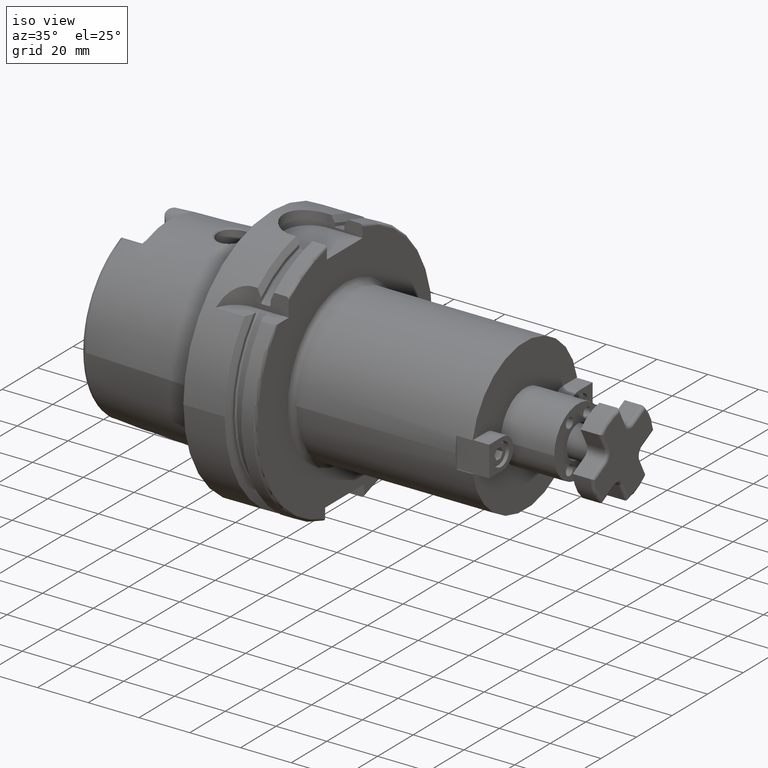
[diagram: clean part render]
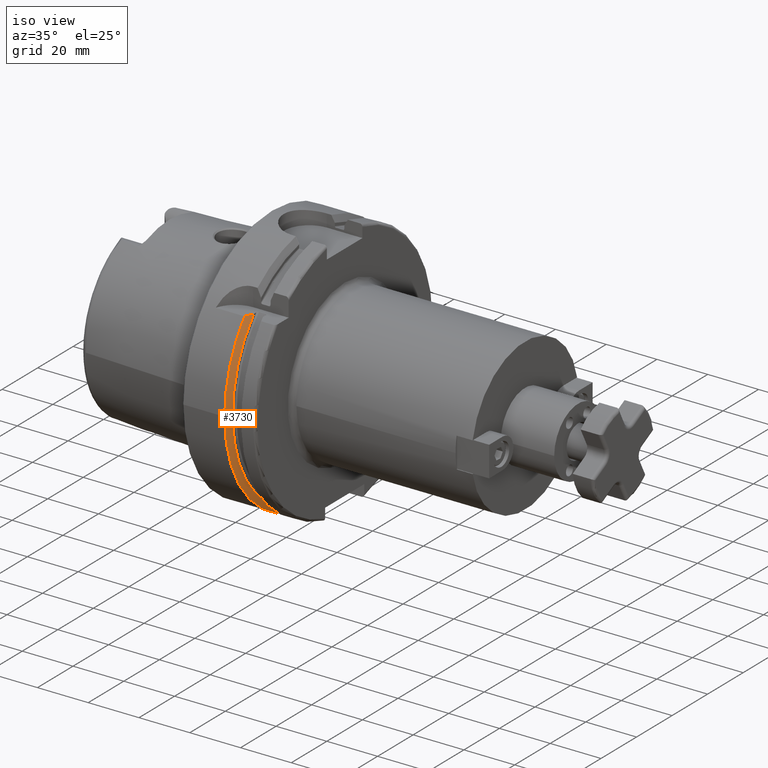
[diagram: same view with one face highlighted and labeled with its STEP entity id]
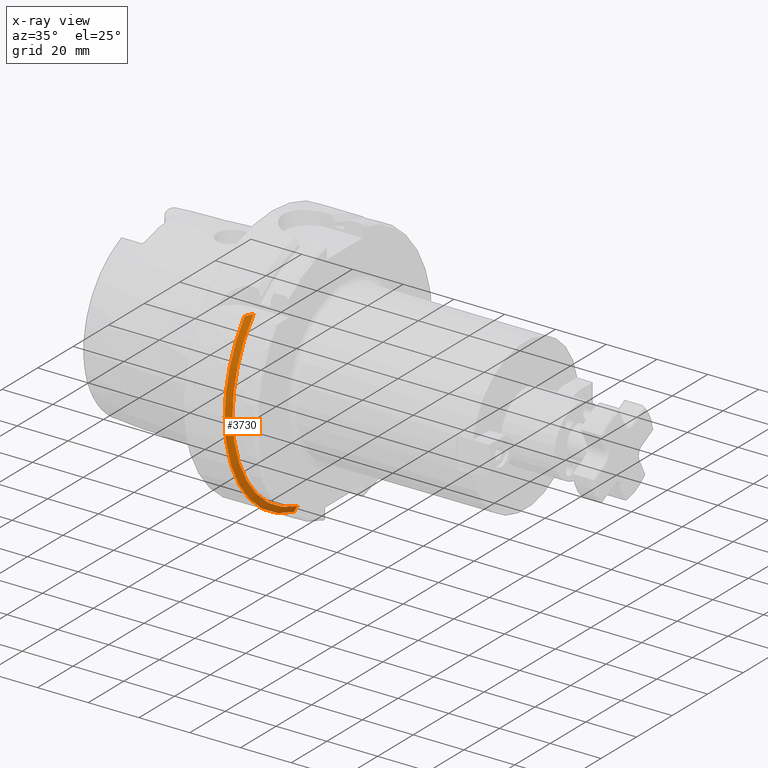
[diagram: x-ray of the same camera — body ghosted, the highlighted face saturated]
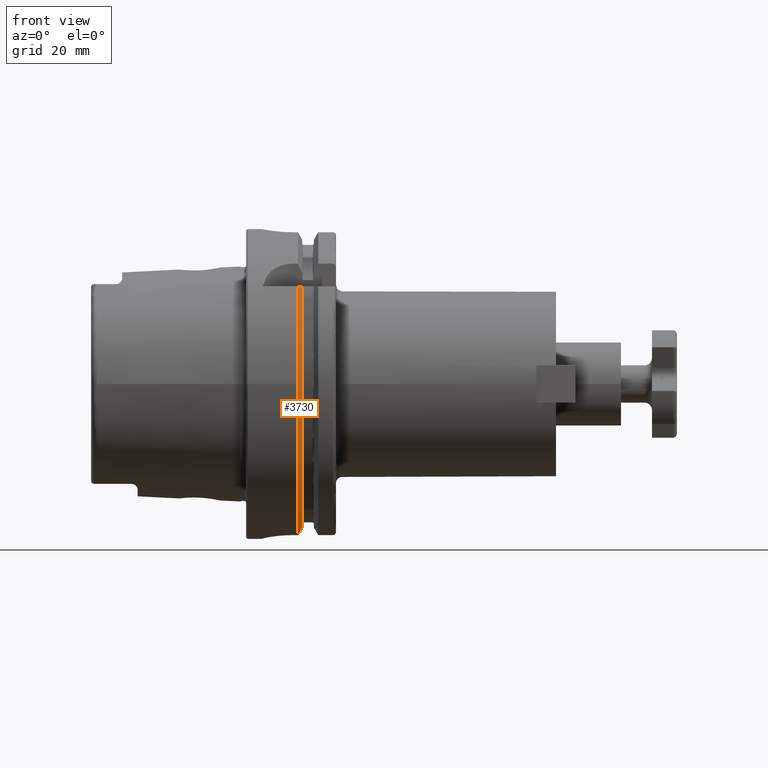
[diagram: same view with one face highlighted and labeled with its STEP entity id]
A machine part, iso view. The second image highlights one B-rep face of the part: STEP entity #3730.
The next image is the same camera in x-ray: the body ghosted, the highlighted face saturated — about 0% of this face is hidden behind the body in this view.
A second angle (front view) of the same face is appended — the face is thin or edge-on in the first view.
In plain terms, the highlighted conical surface has half-angle 60 deg.
Its self-contained STEP definition (entity closure, byte-faithful):
#497=(
BOUNDED_CURVE()
B_SPLINE_CURVE(2,(#6615,#6616,#6617),.UNSPECIFIED.,.F.,.F.)
B_SPLINE_CURVE_WITH_KNOTS((3,3),(0.,0.343884390880417),.UNSPECIFIED.)
CURVE()
GEOMETRIC_REPRESENTATION_ITEM()
RATIONAL_B_SPLINE_CURVE((1.,1.00052016257104,1.))
REPRESENTATION_ITEM('')
);
#504=(
BOUNDED_CURVE()
B_SPLINE_CURVE(2,(#6893,#6894,#6895),.UNSPECIFIED.,.F.,.F.)
B_SPLINE_CURVE_WITH_KNOTS((3,3),(0.,0.282923490805558),.UNSPECIFIED.)
CURVE()
GEOMETRIC_REPRESENTATION_ITEM()
RATIONAL_B_SPLINE_CURVE((1.,1.00031934109636,1.))
REPRESENTATION_ITEM('')
);
#899=FACE_OUTER_BOUND('',#1109,.T.);
#1109=EDGE_LOOP('',(#3259,#3260,#3261,#3262,#3263));
#1651=CIRCLE('',#4095,50.);
#1653=CIRCLE('',#4097,50.);
#1714=CIRCLE('',#4225,47.5975952641917);
#1945=VERTEX_POINT('',#6612);
#1946=VERTEX_POINT('',#6614);
#1963=VERTEX_POINT('',#6716);
#1964=VERTEX_POINT('',#6718);
#1992=VERTEX_POINT('',#6891);
#2307=EDGE_CURVE('',#1946,#1945,#497,.T.);
#2326=EDGE_CURVE('',#1964,#1963,#1651,.T.);
#2329=EDGE_CURVE('',#1945,#1964,#1653,.T.);
#2369=EDGE_CURVE('',#1963,#1992,#504,.T.);
#2459=EDGE_CURVE('',#1946,#1992,#1714,.T.);
#3259=ORIENTED_EDGE('',*,*,#2307,.T.);
#3260=ORIENTED_EDGE('',*,*,#2329,.T.);
#3261=ORIENTED_EDGE('',*,*,#2326,.T.);
#3262=ORIENTED_EDGE('',*,*,#2369,.T.);
#3263=ORIENTED_EDGE('',*,*,#2459,.F.);
#3603=CONICAL_SURFACE('',#4224,48.7987976320958,1.0471975511966);
#3730=ADVANCED_FACE('',(#899),#3603,.T.);
#4095=AXIS2_PLACEMENT_3D('',#6719,#4786,#4787);
#4097=AXIS2_PLACEMENT_3D('',#6723,#4791,#4792);
#4224=AXIS2_PLACEMENT_3D('',#7157,#5089,#5090);
#4225=AXIS2_PLACEMENT_3D('',#7158,#5091,#5092);
#4786=DIRECTION('center_axis',(1.,0.,0.));
#4787=DIRECTION('ref_axis',(0.,0.,-1.));
#4791=DIRECTION('center_axis',(1.,0.,0.));
#4792=DIRECTION('ref_axis',(0.,0.,-1.));
#5089=DIRECTION('center_axis',(-1.,0.,0.));
#5090=DIRECTION('ref_axis',(0.,-0.951449961441176,-0.307803461438603));
#5091=DIRECTION('center_axis',(1.,0.,0.));
#5092=DIRECTION('ref_axis',(0.,0.,-1.));
#6612=CARTESIAN_POINT('',(16.7379709790786,-38.8297566307078,31.5));
#6614=CARTESIAN_POINT('',(18.125,-35.6830642593065,31.5));
#6615=CARTESIAN_POINT('Ctrl Pts',(18.125,-35.6830642593066,31.5));
#6616=CARTESIAN_POINT('Ctrl Pts',(17.4607727557241,-37.2176818849689,31.5));
#6617=CARTESIAN_POINT('Ctrl Pts',(16.7379709790786,-38.8297566307079,31.5));
#6716=CARTESIAN_POINT('',(16.7379709790786,-11.,-48.7749935930288));
#6718=CARTESIAN_POINT('',(16.7379709790786,-50.,-6.12323399573677E-15));
#6719=CARTESIAN_POINT('Origin',(16.7379709790786,0.,0.));
#6723=CARTESIAN_POINT('Origin',(16.7379709790786,0.,0.));
#6891=CARTESIAN_POINT('',(18.125,-11.,-46.3090819919139));
#6893=CARTESIAN_POINT('Ctrl Pts',(16.7379709790786,-11.,-48.7749935930288));
#6894=CARTESIAN_POINT('Ctrl Pts',(17.4494711035784,-11.,-47.5116880808765));
#6895=CARTESIAN_POINT('Ctrl Pts',(18.125,-11.,-46.3090819919139));
#7157=CARTESIAN_POINT('Origin',(17.4314854895393,0.,0.));
#7158=CARTESIAN_POINT('Origin',(18.125,0.,0.));